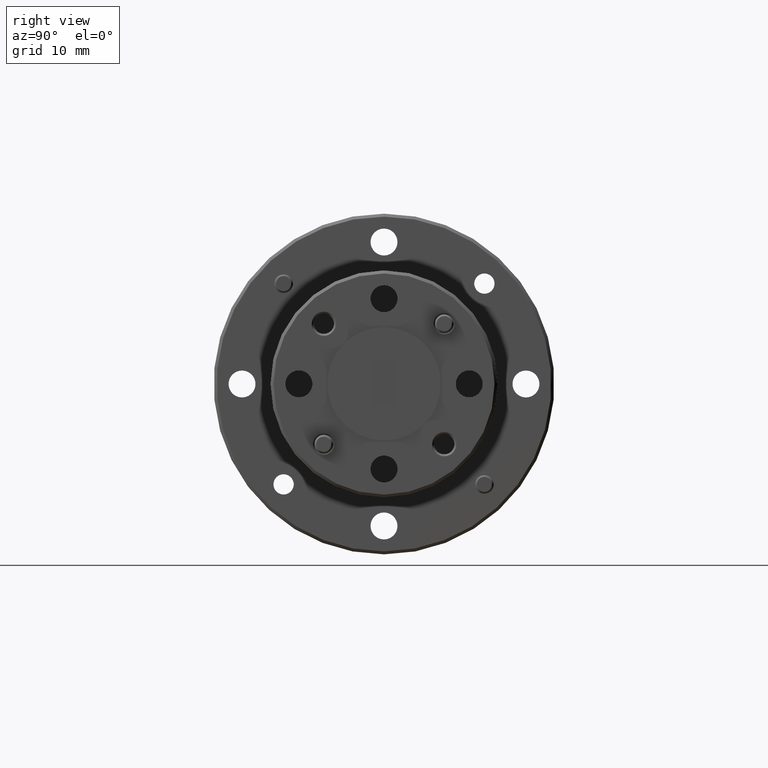
[diagram: clean part render]
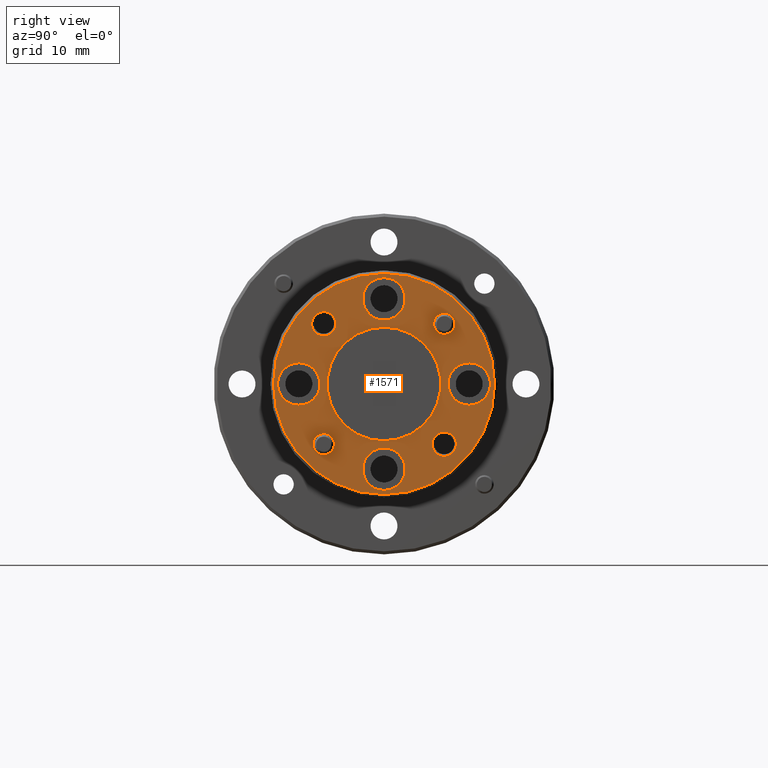
[diagram: same view with one face highlighted and labeled with its STEP entity id]
A machine part, right view. The second image highlights one B-rep face of the part: STEP entity #1571.
In plain terms, the highlighted planar face has unit normal (-1, 0, -0).
Its self-contained STEP definition (entity closure, byte-faithful):
#3 = DIRECTION ( 'NONE',  ( 0.0000000000000000000, 0.0000000000000000000, -1.000000000000000000 ) ) ;
#24 = AXIS2_PLACEMENT_3D ( 'NONE', #1009, #2795, #1315 ) ;
#54 = VERTEX_POINT ( 'NONE', #1937 ) ;
#120 = ORIENTED_EDGE ( 'NONE', *, *, #949, .T. ) ;
#125 = CARTESIAN_POINT ( 'NONE',  ( 1.470000000000000200, 4.531193156845211000E-017, -0.3650000000000003200 ) ) ;
#153 = ORIENTED_EDGE ( 'NONE', *, *, #875, .F. ) ;
#164 = CIRCLE ( 'NONE', #390, 0.03999999999999998000 ) ;
#195 = CARTESIAN_POINT ( 'NONE',  ( 1.470000000000000200, -0.1988737822087175700, -0.1988737822087153200 ) ) ;
#200 = DIRECTION ( 'NONE',  ( 1.000000000000000000, 0.0000000000000000000, 0.0000000000000000000 ) ) ;
#202 = FACE_BOUND ( 'NONE', #243, .T. ) ;
#240 = VERTEX_POINT ( 'NONE', #1601 ) ;
#243 = EDGE_LOOP ( 'NONE', ( #1154, #1190 ) ) ;
#302 = CIRCLE ( 'NONE', #611, 0.03500000000000003800 ) ;
#328 = CIRCLE ( 'NONE', #1756, 0.06999999999999993700 ) ;
#390 = AXIS2_PLACEMENT_3D ( 'NONE', #2282, #2917, #3220 ) ;
#392 = CIRCLE ( 'NONE', #1165, 0.07000000000000000700 ) ;
#400 = VERTEX_POINT ( 'NONE', #1384 ) ;
#412 = ORIENTED_EDGE ( 'NONE', *, *, #2590, .F. ) ;
#417 = VERTEX_POINT ( 'NONE', #443 ) ;
#421 = CARTESIAN_POINT ( 'NONE',  ( 1.470000000000000200, -1.711831365618405200E-016, 0.2112500000000001000 ) ) ;
#443 = CARTESIAN_POINT ( 'NONE',  ( 1.470000000000000200, -0.1988737822087155200, 0.2388737822087172700 ) ) ;
#513 = ORIENTED_EDGE ( 'NONE', *, *, #556, .F. ) ;
#541 = DIRECTION ( 'NONE',  ( 1.000000000000000000, 0.0000000000000000000, 0.0000000000000000000 ) ) ;
#550 = EDGE_CURVE ( 'NONE', #400, #2966, #1077, .T. ) ;
#556 = EDGE_CURVE ( 'NONE', #54, #417, #2077, .T. ) ;
#569 = EDGE_CURVE ( 'NONE', #3507, #1476, #302, .T. ) ;
#572 = CARTESIAN_POINT ( 'NONE',  ( 1.470000000000000200, -1.711831365618405200E-016, 0.2812500000000000600 ) ) ;
#602 = ORIENTED_EDGE ( 'NONE', *, *, #3394, .F. ) ;
#611 = AXIS2_PLACEMENT_3D ( 'NONE', #951, #3414, #993 ) ;
#623 = CIRCLE ( 'NONE', #755, 0.07000000000000000700 ) ;
#640 = CARTESIAN_POINT ( 'NONE',  ( 1.470000000000000200, 0.0000000000000000000, 0.1875000000000003900 ) ) ;
#653 = CARTESIAN_POINT ( 'NONE',  ( 1.470000000000000200, 9.310255857071554600E-018, -0.2112500000000001600 ) ) ;
#715 = FACE_BOUND ( 'NONE', #3590, .T. ) ;
#755 = AXIS2_PLACEMENT_3D ( 'NONE', #803, #2037, #790 ) ;
#759 = AXIS2_PLACEMENT_3D ( 'NONE', #2688, #2898, #1353 ) ;
#766 = CIRCLE ( 'NONE', #3042, 0.03999999999999998000 ) ;
#787 = EDGE_CURVE ( 'NONE', #2684, #3205, #164, .T. ) ;
#790 = DIRECTION ( 'NONE',  ( 0.0000000000000000000, 0.0000000000000000000, -1.000000000000000000 ) ) ;
#803 = CARTESIAN_POINT ( 'NONE',  ( 1.470000000000000200, 0.2812499999999999400, 0.0000000000000000000 ) ) ;
#818 = VERTEX_POINT ( 'NONE', #125 ) ;
#857 = AXIS2_PLACEMENT_3D ( 'NONE', #1803, #2759, #1163 ) ;
#859 = FACE_BOUND ( 'NONE', #2926, .T. ) ;
#875 = EDGE_CURVE ( 'NONE', #3865, #3539, #392, .T. ) ;
#904 = FACE_BOUND ( 'NONE', #3595, .T. ) ;
#914 = CARTESIAN_POINT ( 'NONE',  ( 1.470000000000000200, 0.2812499999999999400, 0.0000000000000000000 ) ) ;
#919 = DIRECTION ( 'NONE',  ( 0.0000000000000000000, 0.0000000000000000000, -1.000000000000000000 ) ) ;
#925 = EDGE_CURVE ( 'NONE', #2834, #2575, #623, .T. ) ;
#932 = AXIS2_PLACEMENT_3D ( 'NONE', #1758, #3603, #3849 ) ;
#949 = EDGE_CURVE ( 'NONE', #240, #2383, #2982, .T. ) ;
#951 = CARTESIAN_POINT ( 'NONE',  ( 1.470000000000000200, -0.1988737822087175700, -0.1988737822087153200 ) ) ;
#983 = CIRCLE ( 'NONE', #3150, 0.03500000000000003800 ) ;
#993 = DIRECTION ( 'NONE',  ( 0.0000000000000000000, 0.0000000000000000000, -1.000000000000000000 ) ) ;
#1009 = CARTESIAN_POINT ( 'NONE',  ( 1.470000000000000200, -0.1988737822087155200, 0.1988737822087172900 ) ) ;
#1017 = ORIENTED_EDGE ( 'NONE', *, *, #787, .F. ) ;
#1051 = CIRCLE ( 'NONE', #1142, 0.3650000000000003200 ) ;
#1068 = AXIS2_PLACEMENT_3D ( 'NONE', #1981, #2935, #3819 ) ;
#1077 = CIRCLE ( 'NONE', #3927, 0.06999999999999996500 ) ;
#1086 = EDGE_CURVE ( 'NONE', #2925, #3777, #2394, .T. ) ;
#1102 = CIRCLE ( 'NONE', #3450, 0.07000000000000000700 ) ;
#1142 = AXIS2_PLACEMENT_3D ( 'NONE', #3887, #1400, #2067 ) ;
#1154 = ORIENTED_EDGE ( 'NONE', *, *, #1479, .F. ) ;
#1155 = CARTESIAN_POINT ( 'NONE',  ( 1.470000000000000200, 0.2812499999999999400, -0.07000000000000000700 ) ) ;
#1163 = DIRECTION ( 'NONE',  ( 0.0000000000000000000, 0.0000000000000000000, 1.000000000000000000 ) ) ;
#1165 = AXIS2_PLACEMENT_3D ( 'NONE', #1690, #200, #3868 ) ;
#1190 = ORIENTED_EDGE ( 'NONE', *, *, #569, .F. ) ;
#1219 = ORIENTED_EDGE ( 'NONE', *, *, #925, .F. ) ;
#1237 = CARTESIAN_POINT ( 'NONE',  ( 1.470000000000000200, 0.1988737822087175400, 0.1988737822087154300 ) ) ;
#1275 = AXIS2_PLACEMENT_3D ( 'NONE', #195, #3550, #3248 ) ;
#1281 = CIRCLE ( 'NONE', #759, 0.03999999999999998000 ) ;
#1292 = AXIS2_PLACEMENT_3D ( 'NONE', #1237, #3372, #919 ) ;
#1293 = EDGE_LOOP ( 'NONE', ( #513, #2292 ) ) ;
#1315 = DIRECTION ( 'NONE',  ( 0.0000000000000000000, 0.0000000000000000000, -1.000000000000000000 ) ) ;
#1353 = DIRECTION ( 'NONE',  ( 0.0000000000000000000, 0.0000000000000000000, -1.000000000000000000 ) ) ;
#1365 = CARTESIAN_POINT ( 'NONE',  ( 1.470000000000000200, 0.0000000000000000000, 0.3650000000000003200 ) ) ;
#1384 = CARTESIAN_POINT ( 'NONE',  ( 1.470000000000000200, -1.626106089678090400E-016, 0.3512500000000000600 ) ) ;
#1385 = EDGE_CURVE ( 'NONE', #1711, #3636, #3792, .T. ) ;
#1400 = DIRECTION ( 'NONE',  ( 1.000000000000000000, 0.0000000000000000000, 0.0000000000000000000 ) ) ;
#1476 = VERTEX_POINT ( 'NONE', #2617 ) ;
#1479 = EDGE_CURVE ( 'NONE', #1476, #3507, #1682, .T. ) ;
#1492 = CARTESIAN_POINT ( 'NONE',  ( 1.470000000000000200, -0.1988737822087175700, -0.1638737822087152900 ) ) ;
#1497 = ORIENTED_EDGE ( 'NONE', *, *, #1604, .T. ) ;
#1504 = DIRECTION ( 'NONE',  ( -1.000000000000000000, -0.0000000000000000000, -0.0000000000000000000 ) ) ;
#1571 = ADVANCED_FACE ( 'NONE', ( #1679, #715, #2974, #859, #1824, #904, #202, #3164, #2248, #2335 ), #2663, .F. ) ;
#1601 = CARTESIAN_POINT ( 'NONE',  ( 1.470000000000000200, 2.296212748401292000E-017, -0.1875000000000003900 ) ) ;
#1604 = EDGE_CURVE ( 'NONE', #2770, #818, #3396, .T. ) ;
#1658 = CIRCLE ( 'NONE', #1845, 0.06999999999999996500 ) ;
#1679 = FACE_OUTER_BOUND ( 'NONE', #2288, .T. ) ;
#1682 = CIRCLE ( 'NONE', #1275, 0.03500000000000003800 ) ;
#1690 = CARTESIAN_POINT ( 'NONE',  ( 1.470000000000000200, -0.2812500000000001700, -3.414809992080329000E-017 ) ) ;
#1711 = VERTEX_POINT ( 'NONE', #653 ) ;
#1747 = CARTESIAN_POINT ( 'NONE',  ( 1.470000000000000200, 0.2812499999999999400, 0.07000000000000000700 ) ) ;
#1752 = EDGE_CURVE ( 'NONE', #2575, #2834, #1102, .T. ) ;
#1756 = AXIS2_PLACEMENT_3D ( 'NONE', #2403, #541, #3 ) ;
#1758 = CARTESIAN_POINT ( 'NONE',  ( 1.470000000000000200, 0.0000000000000000000, 0.0000000000000000000 ) ) ;
#1761 = CARTESIAN_POINT ( 'NONE',  ( 1.470000000000000200, -0.2812500000000001700, 0.06999999999999996500 ) ) ;
#1770 = DIRECTION ( 'NONE',  ( 0.0000000000000000000, 0.0000000000000000000, 1.000000000000000000 ) ) ;
#1782 = CARTESIAN_POINT ( 'NONE',  ( 1.470000000000000200, -0.2812500000000001700, -3.414809992080329000E-017 ) ) ;
#1803 = CARTESIAN_POINT ( 'NONE',  ( 1.470000000000000200, 0.0000000000000000000, 0.0000000000000000000 ) ) ;
#1811 = DIRECTION ( 'NONE',  ( 0.0000000000000000000, 0.0000000000000000000, -1.000000000000000000 ) ) ;
#1824 = FACE_BOUND ( 'NONE', #1882, .T. ) ;
#1845 = AXIS2_PLACEMENT_3D ( 'NONE', #2627, #3864, #2940 ) ;
#1865 = CARTESIAN_POINT ( 'NONE',  ( 1.470000000000000200, 0.1988737822087175400, 0.1638737822087153700 ) ) ;
#1879 = EDGE_CURVE ( 'NONE', #417, #54, #766, .T. ) ;
#1882 = EDGE_LOOP ( 'NONE', ( #1219, #2700 ) ) ;
#1937 = CARTESIAN_POINT ( 'NONE',  ( 1.470000000000000200, -0.1988737822087155200, 0.1588737822087173100 ) ) ;
#1974 = ORIENTED_EDGE ( 'NONE', *, *, #3386, .F. ) ;
#1981 = CARTESIAN_POINT ( 'NONE',  ( 1.470000000000000200, 7.377282630400936000E-019, -0.2812500000000001100 ) ) ;
#2027 = CARTESIAN_POINT ( 'NONE',  ( 1.470000000000000200, 0.1988737822087175400, 0.1988737822087154300 ) ) ;
#2031 = EDGE_CURVE ( 'NONE', #2383, #240, #2828, .T. ) ;
#2037 = DIRECTION ( 'NONE',  ( 1.000000000000000000, 0.0000000000000000000, 0.0000000000000000000 ) ) ;
#2067 = DIRECTION ( 'NONE',  ( 0.0000000000000000000, 0.0000000000000000000, 1.000000000000000000 ) ) ;
#2077 = CIRCLE ( 'NONE', #24, 0.03999999999999998000 ) ;
#2078 = EDGE_CURVE ( 'NONE', #818, #2770, #1051, .T. ) ;
#2095 = EDGE_LOOP ( 'NONE', ( #2933, #602 ) ) ;
#2105 = EDGE_CURVE ( 'NONE', #3636, #1711, #328, .T. ) ;
#2161 = DIRECTION ( 'NONE',  ( 0.0000000000000000000, 0.0000000000000000000, -1.000000000000000000 ) ) ;
#2214 = CARTESIAN_POINT ( 'NONE',  ( 1.470000000000000200, 0.1988737822087153200, -0.1588737822087176700 ) ) ;
#2248 = FACE_BOUND ( 'NONE', #1293, .T. ) ;
#2265 = CARTESIAN_POINT ( 'NONE',  ( 1.470000000000000200, 0.1988737822087175400, 0.2338737822087154600 ) ) ;
#2282 = CARTESIAN_POINT ( 'NONE',  ( 1.470000000000000200, 0.1988737822087153200, -0.1988737822087176500 ) ) ;
#2288 = EDGE_LOOP ( 'NONE', ( #1497, #2502 ) ) ;
#2292 = ORIENTED_EDGE ( 'NONE', *, *, #1879, .F. ) ;
#2306 = CARTESIAN_POINT ( 'NONE',  ( 1.470000000000000200, -0.1988737822087155200, 0.1988737822087172900 ) ) ;
#2319 = DIRECTION ( 'NONE',  ( 1.000000000000000000, -0.0000000000000000000, -0.0000000000000000000 ) ) ;
#2335 = FACE_BOUND ( 'NONE', #3711, .T. ) ;
#2383 = VERTEX_POINT ( 'NONE', #640 ) ;
#2394 = CIRCLE ( 'NONE', #1292, 0.03500000000000003800 ) ;
#2395 = DIRECTION ( 'NONE',  ( -1.000000000000000000, 0.0000000000000000000, -0.0000000000000000000 ) ) ;
#2397 = ORIENTED_EDGE ( 'NONE', *, *, #2105, .F. ) ;
#2403 = CARTESIAN_POINT ( 'NONE',  ( 1.470000000000000200, 7.377282630400936000E-019, -0.2812500000000001100 ) ) ;
#2456 = DIRECTION ( 'NONE',  ( 1.000000000000000000, 0.0000000000000000000, 0.0000000000000000000 ) ) ;
#2474 = CARTESIAN_POINT ( 'NONE',  ( 1.470000000000000200, -0.2812500000000001700, -0.07000000000000003400 ) ) ;
#2498 = ORIENTED_EDGE ( 'NONE', *, *, #550, .F. ) ;
#2502 = ORIENTED_EDGE ( 'NONE', *, *, #2078, .T. ) ;
#2544 = CARTESIAN_POINT ( 'NONE',  ( 1.470000000000000200, 7.377282630400936000E-019, -0.3512500000000000600 ) ) ;
#2552 = AXIS2_PLACEMENT_3D ( 'NONE', #1782, #2987, #3897 ) ;
#2575 = VERTEX_POINT ( 'NONE', #1747 ) ;
#2590 = EDGE_CURVE ( 'NONE', #3205, #2684, #1281, .T. ) ;
#2617 = CARTESIAN_POINT ( 'NONE',  ( 1.470000000000000200, -0.1988737822087175700, -0.2338737822087153500 ) ) ;
#2627 = CARTESIAN_POINT ( 'NONE',  ( 1.470000000000000200, -1.711831365618405200E-016, 0.2812500000000000600 ) ) ;
#2663 = PLANE ( 'NONE',  #3814 ) ;
#2678 = CARTESIAN_POINT ( 'NONE',  ( 1.470000000000000200, 0.3750000000000003900, 0.0000000000000000000 ) ) ;
#2684 = VERTEX_POINT ( 'NONE', #2821 ) ;
#2688 = CARTESIAN_POINT ( 'NONE',  ( 1.470000000000000200, 0.1988737822087153200, -0.1988737822087176500 ) ) ;
#2700 = ORIENTED_EDGE ( 'NONE', *, *, #1752, .F. ) ;
#2750 = EDGE_LOOP ( 'NONE', ( #3810, #153 ) ) ;
#2759 = DIRECTION ( 'NONE',  ( 1.000000000000000000, 0.0000000000000000000, 0.0000000000000000000 ) ) ;
#2770 = VERTEX_POINT ( 'NONE', #1365 ) ;
#2795 = DIRECTION ( 'NONE',  ( 1.000000000000000000, -0.0000000000000000000, -0.0000000000000000000 ) ) ;
#2821 = CARTESIAN_POINT ( 'NONE',  ( 1.470000000000000200, 0.1988737822087153200, -0.2388737822087176300 ) ) ;
#2828 = CIRCLE ( 'NONE', #932, 0.1875000000000003900 ) ;
#2834 = VERTEX_POINT ( 'NONE', #1155 ) ;
#2885 = EDGE_CURVE ( 'NONE', #3539, #3865, #3521, .T. ) ;
#2898 = DIRECTION ( 'NONE',  ( 1.000000000000000000, -0.0000000000000000000, -0.0000000000000000000 ) ) ;
#2917 = DIRECTION ( 'NONE',  ( 1.000000000000000000, -0.0000000000000000000, -0.0000000000000000000 ) ) ;
#2925 = VERTEX_POINT ( 'NONE', #1865 ) ;
#2926 = EDGE_LOOP ( 'NONE', ( #2397, #3783 ) ) ;
#2933 = ORIENTED_EDGE ( 'NONE', *, *, #1086, .F. ) ;
#2935 = DIRECTION ( 'NONE',  ( 1.000000000000000000, 0.0000000000000000000, 0.0000000000000000000 ) ) ;
#2940 = DIRECTION ( 'NONE',  ( 0.0000000000000000000, 0.0000000000000000000, -1.000000000000000000 ) ) ;
#2966 = VERTEX_POINT ( 'NONE', #421 ) ;
#2974 = FACE_BOUND ( 'NONE', #2750, .T. ) ;
#2976 = DIRECTION ( 'NONE',  ( 1.000000000000000000, -0.0000000000000000000, -0.0000000000000000000 ) ) ;
#2982 = CIRCLE ( 'NONE', #3269, 0.1875000000000003900 ) ;
#2987 = DIRECTION ( 'NONE',  ( 1.000000000000000000, 0.0000000000000000000, 0.0000000000000000000 ) ) ;
#3042 = AXIS2_PLACEMENT_3D ( 'NONE', #2306, #2976, #2161 ) ;
#3150 = AXIS2_PLACEMENT_3D ( 'NONE', #2027, #2319, #3258 ) ;
#3164 = FACE_BOUND ( 'NONE', #2095, .T. ) ;
#3205 = VERTEX_POINT ( 'NONE', #2214 ) ;
#3213 = ORIENTED_EDGE ( 'NONE', *, *, #2031, .T. ) ;
#3220 = DIRECTION ( 'NONE',  ( 0.0000000000000000000, 0.0000000000000000000, -1.000000000000000000 ) ) ;
#3248 = DIRECTION ( 'NONE',  ( 0.0000000000000000000, 0.0000000000000000000, -1.000000000000000000 ) ) ;
#3258 = DIRECTION ( 'NONE',  ( 0.0000000000000000000, 0.0000000000000000000, -1.000000000000000000 ) ) ;
#3269 = AXIS2_PLACEMENT_3D ( 'NONE', #3944, #1504, #1770 ) ;
#3372 = DIRECTION ( 'NONE',  ( 1.000000000000000000, -0.0000000000000000000, -0.0000000000000000000 ) ) ;
#3386 = EDGE_CURVE ( 'NONE', #2966, #400, #1658, .T. ) ;
#3394 = EDGE_CURVE ( 'NONE', #3777, #2925, #983, .T. ) ;
#3396 = CIRCLE ( 'NONE', #857, 0.3650000000000003200 ) ;
#3414 = DIRECTION ( 'NONE',  ( 1.000000000000000000, -0.0000000000000000000, -0.0000000000000000000 ) ) ;
#3450 = AXIS2_PLACEMENT_3D ( 'NONE', #914, #2456, #3723 ) ;
#3507 = VERTEX_POINT ( 'NONE', #1492 ) ;
#3521 = CIRCLE ( 'NONE', #2552, 0.07000000000000000700 ) ;
#3539 = VERTEX_POINT ( 'NONE', #2474 ) ;
#3550 = DIRECTION ( 'NONE',  ( 1.000000000000000000, -0.0000000000000000000, -0.0000000000000000000 ) ) ;
#3590 = EDGE_LOOP ( 'NONE', ( #1974, #2498 ) ) ;
#3595 = EDGE_LOOP ( 'NONE', ( #3213, #120 ) ) ;
#3603 = DIRECTION ( 'NONE',  ( -1.000000000000000000, -0.0000000000000000000, -0.0000000000000000000 ) ) ;
#3636 = VERTEX_POINT ( 'NONE', #2544 ) ;
#3647 = DIRECTION ( 'NONE',  ( -0.0000000000000000000, 0.0000000000000000000, 1.000000000000000000 ) ) ;
#3658 = DIRECTION ( 'NONE',  ( 1.000000000000000000, 0.0000000000000000000, 0.0000000000000000000 ) ) ;
#3711 = EDGE_LOOP ( 'NONE', ( #1017, #412 ) ) ;
#3723 = DIRECTION ( 'NONE',  ( 0.0000000000000000000, 0.0000000000000000000, -1.000000000000000000 ) ) ;
#3777 = VERTEX_POINT ( 'NONE', #2265 ) ;
#3783 = ORIENTED_EDGE ( 'NONE', *, *, #1385, .F. ) ;
#3792 = CIRCLE ( 'NONE', #1068, 0.06999999999999993700 ) ;
#3810 = ORIENTED_EDGE ( 'NONE', *, *, #2885, .F. ) ;
#3814 = AXIS2_PLACEMENT_3D ( 'NONE', #2678, #2395, #3647 ) ;
#3819 = DIRECTION ( 'NONE',  ( 0.0000000000000000000, 0.0000000000000000000, -1.000000000000000000 ) ) ;
#3849 = DIRECTION ( 'NONE',  ( 0.0000000000000000000, 0.0000000000000000000, 1.000000000000000000 ) ) ;
#3864 = DIRECTION ( 'NONE',  ( 1.000000000000000000, 0.0000000000000000000, 0.0000000000000000000 ) ) ;
#3865 = VERTEX_POINT ( 'NONE', #1761 ) ;
#3868 = DIRECTION ( 'NONE',  ( 0.0000000000000000000, 0.0000000000000000000, -1.000000000000000000 ) ) ;
#3887 = CARTESIAN_POINT ( 'NONE',  ( 1.470000000000000200, 0.0000000000000000000, 0.0000000000000000000 ) ) ;
#3897 = DIRECTION ( 'NONE',  ( 0.0000000000000000000, 0.0000000000000000000, -1.000000000000000000 ) ) ;
#3927 = AXIS2_PLACEMENT_3D ( 'NONE', #572, #3658, #1811 ) ;
#3944 = CARTESIAN_POINT ( 'NONE',  ( 1.470000000000000200, 0.0000000000000000000, 0.0000000000000000000 ) ) ;